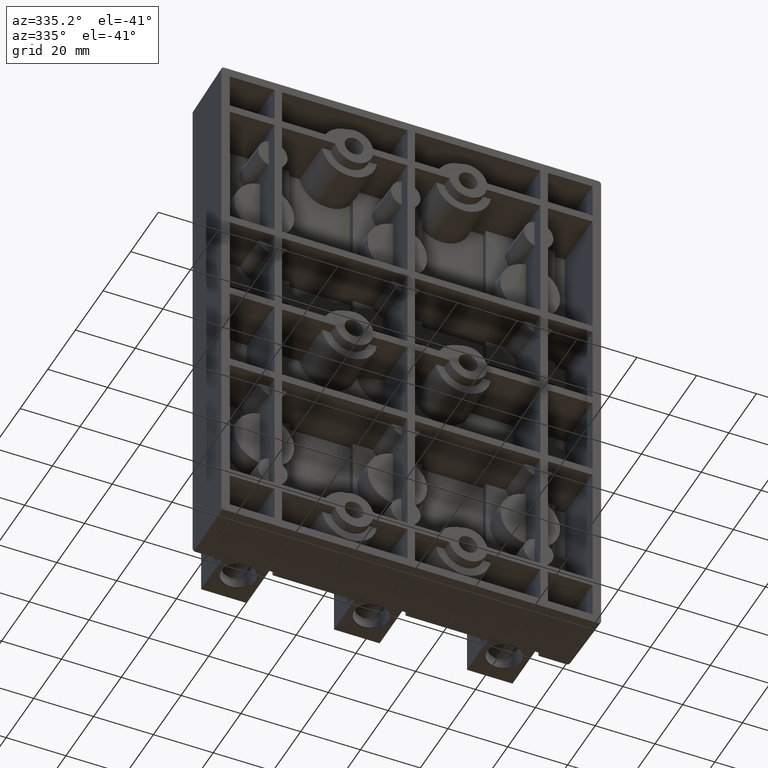
[diagram: clean part render]
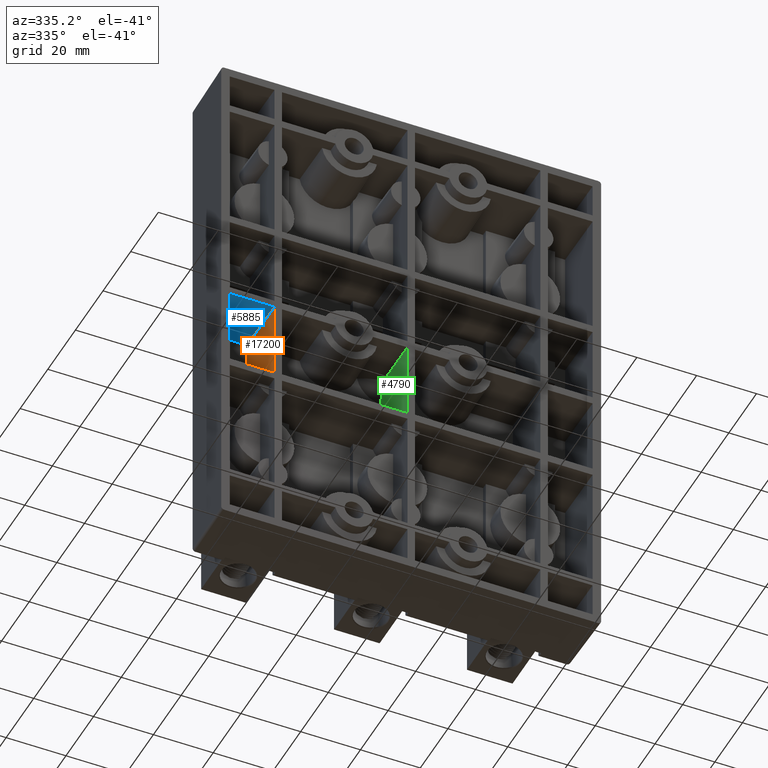
[diagram: same view with three faces highlighted in distinct colors, each labeled with its STEP entity id]
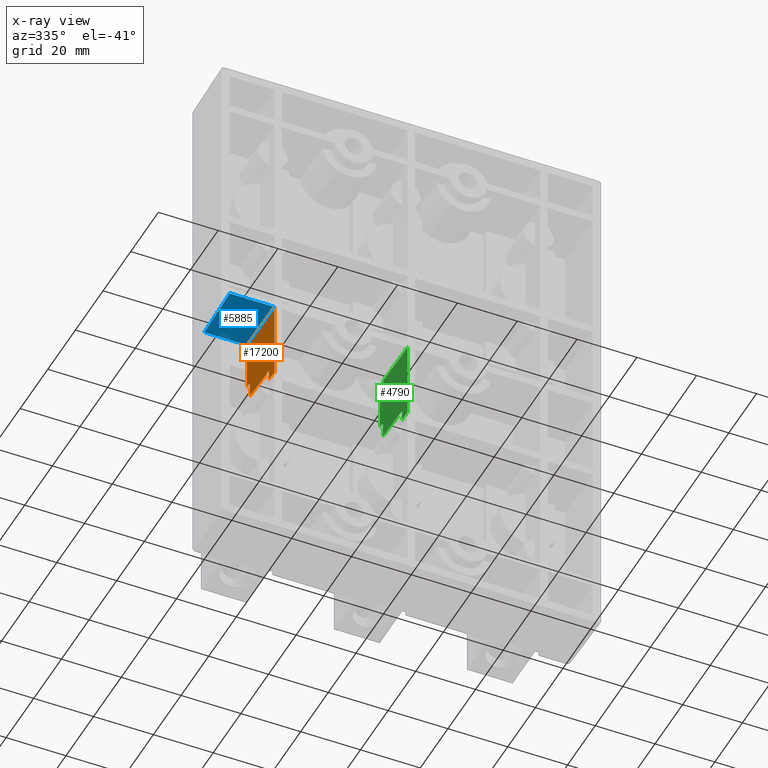
[diagram: x-ray of the same camera — body ghosted, the three highlighted faces saturated]
A machine part, auxiliary view with three faces highlighted in distinct colors.
The next image is the same camera in x-ray (body ghosted, the three faces saturated) — at least one of them is partly hidden behind the body in this view.
Their STEP definitions:

[orange] entity #17200 — the highlighted planar face has unit normal (-0.9998, -0.0175, 0).
#1521 = CARTESIAN_POINT ( 'NONE',  ( -1.799321425979187000, 4.217833704478631000E-017, -0.04932142597919560900 ) ) ;
#2028 = LINE ( 'NONE', #5041, #28330 ) ;
#4012 = DIRECTION ( 'NONE',  ( -5.434857531684421300E-016, -9.486579109116360000E-018, -1.000000000000000000 ) ) ;
#4737 = LINE ( 'NONE', #28675, #12749 ) ;
#5041 = CARTESIAN_POINT ( 'NONE',  ( -1.799321425979187600, 7.821329258079843800E-051, -1.080678574020799800 ) ) ;
#5464 = VECTOR ( 'NONE', #4012, 39.37007874015748100 ) ;
#5694 = DIRECTION ( 'NONE',  ( -0.9998476951563912700, -0.01745240643728345300, 5.435685412901140100E-016 ) ) ;
#8646 = CARTESIAN_POINT ( 'NONE',  ( -1.812499999999991600, 0.7550000000000000000, -0.7249999999999940900 ) ) ;
#8880 = DIRECTION ( 'NONE',  ( 5.434857531684421300E-016, 9.486579109116360000E-018, 1.000000000000000000 ) ) ;
#9981 = AXIS2_PLACEMENT_3D ( 'NONE', #22775, #5694, #29703 ) ;
#10492 = LINE ( 'NONE', #29225, #37928 ) ;
#10588 = CARTESIAN_POINT ( 'NONE',  ( -1.811103594805744100, 0.6750000000005457200, -0.9363058572779544600 ) ) ;
#10701 = CARTESIAN_POINT ( 'NONE',  ( -1.812499999999991600, 0.7550000000000000000, -0.7249999999999940900 ) ) ;
#10909 = ORIENTED_EDGE ( 'NONE', *, *, #25054, .T. ) ;
#11194 = CARTESIAN_POINT ( 'NONE',  ( -1.811103594805732100, 0.6750000000000000400, 3.499999999999986200 ) ) ;
#11324 = CARTESIAN_POINT ( 'NONE',  ( -1.802026961043064600, 0.1550000000001802400, -0.9430784738553837900 ) ) ;
#12107 = DIRECTION ( 'NONE',  ( 0.01744974916068238100, -0.9996954598818874600, 0.01744974916068262000 ) ) ;
#12749 = VECTOR ( 'NONE', #32167, 39.37007874015748100 ) ;
#12910 = VECTOR ( 'NONE', #29198, 39.37007874015748100 ) ;
#14082 = EDGE_CURVE ( 'NONE', #24035, #35669, #10492, .T. ) ;
#14177 = CARTESIAN_POINT ( 'NONE',  ( -1.806458853191105900, 0.4089029311131446300, -0.9397334122915259600 ) ) ;
#14492 = EDGE_CURVE ( 'NONE', #25416, #38832, #28484, .T. ) ;
#15102 = VERTEX_POINT ( 'NONE', #10701 ) ;
#15535 = B_SPLINE_CURVE_WITH_KNOTS ( 'NONE', 3,
 ( #10588, #27825, #14177, #38257, #17630, #41674, #21086 ),
 .UNSPECIFIED., .F., .F.,
 ( 4, 3, 4 ),
 ( 8.314767584964345500E-015, 0.01014068344202671100, 0.01321113199718661500 ),
 .UNSPECIFIED. ) ;
#16324 = ORIENTED_EDGE ( 'NONE', *, *, #14492, .T. ) ;
#17200 = ADVANCED_FACE ( 'NONE', ( #39142 ), #26220, .T. ) ;
#17278 = CARTESIAN_POINT ( 'NONE',  ( -1.812499999999990900, 0.7550000000000000000, -0.06249999999999977800 ) ) ;
#17630 = CARTESIAN_POINT ( 'NONE',  ( -1.803433313484292800, 0.2355698773974739800, -0.9420123898356945700 ) ) ;
#17699 = CARTESIAN_POINT ( 'NONE',  ( -1.811103594805744100, 0.6750000000005457200, -0.9363058572779544600 ) ) ;
#18590 = EDGE_LOOP ( 'NONE', ( #28900, #21356, #26455, #41664, #40898, #10909, #33064, #16324 ) ) ;
#20233 = LINE ( 'NONE', #22357, #30468 ) ;
#21086 = CARTESIAN_POINT ( 'NONE',  ( -1.802026961043064600, 0.1550000000001802400, -0.9430784738553837900 ) ) ;
#21356 = ORIENTED_EDGE ( 'NONE', *, *, #22698, .T. ) ;
#22056 = LINE ( 'NONE', #8646, #12910 ) ;
#22261 = DIRECTION ( 'NONE',  ( -0.01744974916068265500, 0.9996954598818874600, 0.01744974916068265500 ) ) ;
#22357 = CARTESIAN_POINT ( 'NONE',  ( -1.799321425979185200, 2.731847993664263200E-016, 3.499999999999986200 ) ) ;
#22409 = VERTEX_POINT ( 'NONE', #42086 ) ;
#22698 = EDGE_CURVE ( 'NONE', #26345, #22409, #32879, .T. ) ;
#22775 = CARTESIAN_POINT ( 'NONE',  ( -1.812499999999989600, 0.7550000000000000000, 3.499999999999986200 ) ) ;
#24035 = VERTEX_POINT ( 'NONE', #17278 ) ;
#24517 = CARTESIAN_POINT ( 'NONE',  ( -1.802026961043058800, 0.1550000000000001100, 3.499999999999986200 ) ) ;
#25054 = EDGE_CURVE ( 'NONE', #24035, #15102, #4737, .T. ) ;
#25416 = VERTEX_POINT ( 'NONE', #40407 ) ;
#26220 = PLANE ( 'NONE',  #9981 ) ;
#26345 = VERTEX_POINT ( 'NONE', #11324 ) ;
#26455 = ORIENTED_EDGE ( 'NONE', *, *, #32523, .F. ) ;
#27411 = VECTOR ( 'NONE', #31786, 39.37007874015748100 ) ;
#27825 = CARTESIAN_POINT ( 'NONE',  ( -1.808781221514226900, 0.5419513232372340500, -0.9380084229970838700 ) ) ;
#27886 = EDGE_CURVE ( 'NONE', #40378, #35669, #20233, .T. ) ;
#28330 = VECTOR ( 'NONE', #22261, 39.37007874015748900 ) ;
#28484 = LINE ( 'NONE', #11194, #27411 ) ;
#28675 = CARTESIAN_POINT ( 'NONE',  ( -1.812499999999989600, 0.7550000000000000000, 3.499999999999986200 ) ) ;
#28900 = ORIENTED_EDGE ( 'NONE', *, *, #42540, .T. ) ;
#29198 = DIRECTION ( 'NONE',  ( 0.01745240643728345300, -0.9998476951563912700, 0.0000000000000000000 ) ) ;
#29225 = CARTESIAN_POINT ( 'NONE',  ( -1.812499999999991100, 0.7550000000000000000, -0.06249999999999982700 ) ) ;
#29703 = DIRECTION ( 'NONE',  ( 0.01745240643728345300, -0.9998476951563912700, 0.0000000000000000000 ) ) ;
#30468 = VECTOR ( 'NONE', #8880, 39.37007874015748100 ) ;
#30751 = EDGE_CURVE ( 'NONE', #15102, #25416, #22056, .T. ) ;
#31786 = DIRECTION ( 'NONE',  ( -5.434857531684421300E-016, -9.486579109116360000E-018, -1.000000000000000000 ) ) ;
#32167 = DIRECTION ( 'NONE',  ( -5.434857531684421300E-016, -9.486579109116360000E-018, -1.000000000000000000 ) ) ;
#32523 = EDGE_CURVE ( 'NONE', #40378, #22409, #2028, .T. ) ;
#32879 = LINE ( 'NONE', #24517, #5464 ) ;
#33064 = ORIENTED_EDGE ( 'NONE', *, *, #30751, .T. ) ;
#33585 = CARTESIAN_POINT ( 'NONE',  ( -1.799321425979187600, 1.273395197089867700E-016, -1.080678574020799100 ) ) ;
#35669 = VERTEX_POINT ( 'NONE', #1521 ) ;
#37928 = VECTOR ( 'NONE', #12107, 39.37007874015748900 ) ;
#38257 = CARTESIAN_POINT ( 'NONE',  ( -1.804136490481178300, 0.2758548605686793100, -0.9414827241427046200 ) ) ;
#38832 = VERTEX_POINT ( 'NONE', #17699 ) ;
#39142 = FACE_OUTER_BOUND ( 'NONE', #18590, .T. ) ;
#40378 = VERTEX_POINT ( 'NONE', #33585 ) ;
#40407 = CARTESIAN_POINT ( 'NONE',  ( -1.811103594805734100, 0.6750000000000000400, -0.7249999999999940900 ) ) ;
#40898 = ORIENTED_EDGE ( 'NONE', *, *, #14082, .F. ) ;
#41664 = ORIENTED_EDGE ( 'NONE', *, *, #27886, .T. ) ;
#41674 = CARTESIAN_POINT ( 'NONE',  ( -1.802730136998280900, 0.1952849234941960700, -0.9425442871958800200 ) ) ;
#42086 = CARTESIAN_POINT ( 'NONE',  ( -1.802026961043061300, 0.1550000000000000800, -1.077973038956926000 ) ) ;
#42540 = EDGE_CURVE ( 'NONE', #38832, #26345, #15535, .T. ) ;

[blue] entity #5885 — the highlighted planar face has unit normal (0, -0.0175, -0.9998).
#205 = FACE_OUTER_BOUND ( 'NONE', #35281, .T. ) ;
#1049 = ORIENTED_EDGE ( 'NONE', *, *, #42583, .T. ) ;
#1521 = CARTESIAN_POINT ( 'NONE',  ( -1.799321425979187000, 4.217833704478631000E-017, -0.04932142597919560900 ) ) ;
#2878 = VERTEX_POINT ( 'NONE', #7430 ) ;
#5076 = DIRECTION ( 'NONE',  ( 4.717927861788497900E-016, -0.01745240643728345300, -0.9998476951563912700 ) ) ;
#5885 = ADVANCED_FACE ( 'NONE', ( #205 ), #25625, .T. ) ;
#7430 = CARTESIAN_POINT ( 'NONE',  ( -2.374999999999992500, 0.7550000000000000000, -0.06249999999999999300 ) ) ;
#9115 = VECTOR ( 'NONE', #33541, 39.37007874015748100 ) ;
#10245 = LINE ( 'NONE', #27363, #35522 ) ;
#10492 = LINE ( 'NONE', #29225, #37928 ) ;
#11100 = ORIENTED_EDGE ( 'NONE', *, *, #14082, .T. ) ;
#12107 = DIRECTION ( 'NONE',  ( 0.01744974916068238100, -0.9996954598818874600, 0.01744974916068262000 ) ) ;
#14082 = EDGE_CURVE ( 'NONE', #24035, #35669, #10492, .T. ) ;
#14307 = CARTESIAN_POINT ( 'NONE',  ( 2.499999999999986200, 0.0000000000000000000, -0.04932142597919356900 ) ) ;
#14522 = CARTESIAN_POINT ( 'NONE',  ( -2.388178574020796600, 2.408588275140259900E-017, -0.04932142597919568500 ) ) ;
#14693 = ORIENTED_EDGE ( 'NONE', *, *, #31083, .F. ) ;
#15286 = CARTESIAN_POINT ( 'NONE',  ( 2.499999999999986200, 0.7550000000000000000, -0.06249999999999779300 ) ) ;
#17278 = CARTESIAN_POINT ( 'NONE',  ( -1.812499999999990900, 0.7550000000000000000, -0.06249999999999977800 ) ) ;
#17862 = LINE ( 'NONE', #14307, #24814 ) ;
#19531 = ORIENTED_EDGE ( 'NONE', *, *, #31474, .T. ) ;
#21124 = VERTEX_POINT ( 'NONE', #14522 ) ;
#22976 = CARTESIAN_POINT ( 'NONE',  ( 2.499999999999986200, 0.7550000000000000000, -0.06249999999999779300 ) ) ;
#24035 = VERTEX_POINT ( 'NONE', #17278 ) ;
#24654 = DIRECTION ( 'NONE',  ( -1.000000000000000000, -8.233919458571651700E-018, -4.717209298523350300E-016 ) ) ;
#24814 = VECTOR ( 'NONE', #24654, 39.37007874015748100 ) ;
#25625 = PLANE ( 'NONE',  #42790 ) ;
#27346 = LINE ( 'NONE', #22976, #9115 ) ;
#27363 = CARTESIAN_POINT ( 'NONE',  ( -2.374999999999992500, 0.7550000000000000000, -0.06250000000000022200 ) ) ;
#29087 = DIRECTION ( 'NONE',  ( 0.0000000000000000000, 0.9998476951563912700, -0.01745240643728345300 ) ) ;
#29225 = CARTESIAN_POINT ( 'NONE',  ( -1.812499999999991100, 0.7550000000000000000, -0.06249999999999982700 ) ) ;
#30865 = DIRECTION ( 'NONE',  ( -0.01744974916068274500, -0.9996954598818874600, 0.01744974916068310600 ) ) ;
#31083 = EDGE_CURVE ( 'NONE', #2878, #21124, #10245, .T. ) ;
#31474 = EDGE_CURVE ( 'NONE', #2878, #24035, #27346, .T. ) ;
#33541 = DIRECTION ( 'NONE',  ( 1.000000000000000000, 8.233919458571651700E-018, 4.717209298523350300E-016 ) ) ;
#35281 = EDGE_LOOP ( 'NONE', ( #19531, #11100, #1049, #14693 ) ) ;
#35522 = VECTOR ( 'NONE', #30865, 39.37007874015748900 ) ;
#35669 = VERTEX_POINT ( 'NONE', #1521 ) ;
#37928 = VECTOR ( 'NONE', #12107, 39.37007874015748900 ) ;
#42583 = EDGE_CURVE ( 'NONE', #35669, #21124, #17862, .T. ) ;
#42790 = AXIS2_PLACEMENT_3D ( 'NONE', #15286, #5076, #29087 ) ;

[green] entity #4790 — the highlighted planar face has unit normal (-0.9998, -0.0175, 0).
#512 = ORIENTED_EDGE ( 'NONE', *, *, #16446, .T. ) ;
#1477 = CARTESIAN_POINT ( 'NONE',  ( -0.04932142597919519900, -1.683545924561659400E-017, -0.04932142597919562200 ) ) ;
#1600 = VECTOR ( 'NONE', #8549, 39.37007874015748100 ) ;
#1960 = VERTEX_POINT ( 'NONE', #18596 ) ;
#1992 = DIRECTION ( 'NONE',  ( -2.717428765842211200E-016, -4.743289554558180800E-018, -1.000000000000000000 ) ) ;
#2474 = FACE_OUTER_BOUND ( 'NONE', #38538, .T. ) ;
#3462 = LINE ( 'NONE', #3756, #20615 ) ;
#3464 = PLANE ( 'NONE',  #27768 ) ;
#3686 = EDGE_CURVE ( 'NONE', #11908, #14589, #43287, .T. ) ;
#3756 = CARTESIAN_POINT ( 'NONE',  ( -0.06249999999999846000, 0.7550000000000000000, 3.499999999999984500 ) ) ;
#4473 = CARTESIAN_POINT ( 'NONE',  ( -0.06249999999999960400, 0.7550000000000000000, -0.7249999999999945400 ) ) ;
#4790 = ADVANCED_FACE ( 'NONE', ( #2474 ), #3464, .T. ) ;
#6215 = EDGE_CURVE ( 'NONE', #21104, #35070, #3462, .T. ) ;
#6465 = ORIENTED_EDGE ( 'NONE', *, *, #3686, .T. ) ;
#6741 = CARTESIAN_POINT ( 'NONE',  ( -0.06249999999999960400, 0.7550000000000000000, -0.7249999999999944300 ) ) ;
#7311 = CARTESIAN_POINT ( 'NONE',  ( -0.05413649048118609300, 0.2758548605686772000, -0.9414827241427021800 ) ) ;
#7922 = ORIENTED_EDGE ( 'NONE', *, *, #39608, .T. ) ;
#8531 = CARTESIAN_POINT ( 'NONE',  ( -0.06110359480575178900, 0.6750000000005457200, -0.9363058572779520100 ) ) ;
#8549 = DIRECTION ( 'NONE',  ( -0.01744974916068262000, 0.9996954598818874600, -0.01744974916068312400 ) ) ;
#9220 = VECTOR ( 'NONE', #16296, 39.37007874015748100 ) ;
#10750 = CARTESIAN_POINT ( 'NONE',  ( -0.05273013699828860800, 0.1952849234941953500, -0.9425442871958775700 ) ) ;
#11328 = VERTEX_POINT ( 'NONE', #30715 ) ;
#11530 = LINE ( 'NONE', #4473, #29810 ) ;
#11811 = ORIENTED_EDGE ( 'NONE', *, *, #6215, .T. ) ;
#11908 = VERTEX_POINT ( 'NONE', #8531 ) ;
#12344 = CARTESIAN_POINT ( 'NONE',  ( -0.06110359480574106800, 0.6750000000000000400, 3.499999999999984500 ) ) ;
#14589 = VERTEX_POINT ( 'NONE', #35707 ) ;
#15226 = CARTESIAN_POINT ( 'NONE',  ( -0.06151625303178313900, 0.6986411739365032700, -0.2414275405462338300 ) ) ;
#16296 = DIRECTION ( 'NONE',  ( 2.717428765842211200E-016, 4.743289554558180800E-018, 1.000000000000000000 ) ) ;
#16421 = VERTEX_POINT ( 'NONE', #38687 ) ;
#16446 = EDGE_CURVE ( 'NONE', #37305, #16421, #29496, .T. ) ;
#16483 = CARTESIAN_POINT ( 'NONE',  ( -0.05202696104306794900, 0.1550000000000001100, 3.499999999999984500 ) ) ;
#17359 = CARTESIAN_POINT ( 'NONE',  ( -0.06110359480575178900, 0.6750000000005457200, -0.9363058572779520100 ) ) ;
#18345 = LINE ( 'NONE', #40336, #9220 ) ;
#18596 = CARTESIAN_POINT ( 'NONE',  ( -0.04932142597919527600, -1.046918547002628700E-016, -0.04932142597919571300 ) ) ;
#18666 = CARTESIAN_POINT ( 'NONE',  ( -0.06205436686996245600, 0.7294696950787830100, -0.3151151692894297900 ) ) ;
#19302 = EDGE_CURVE ( 'NONE', #35070, #28039, #11530, .T. ) ;
#20615 = VECTOR ( 'NONE', #31225, 39.37007874015748100 ) ;
#20687 = DIRECTION ( 'NONE',  ( 0.01745240643728345300, -0.9998476951563912700, 0.0000000000000000000 ) ) ;
#20941 = CARTESIAN_POINT ( 'NONE',  ( -0.05878122151423474000, 0.5419513232372333800, -0.9380084229970814300 ) ) ;
#21104 = VERTEX_POINT ( 'NONE', #41880 ) ;
#21446 = VECTOR ( 'NONE', #42253, 39.37007874015748900 ) ;
#21942 = ORIENTED_EDGE ( 'NONE', *, *, #23533, .T. ) ;
#22120 = CARTESIAN_POINT ( 'NONE',  ( -0.06249999999999974300, 0.7549999999999995600, -0.3620687089490048400 ) ) ;
#22957 = ORIENTED_EDGE ( 'NONE', *, *, #40345, .T. ) ;
#22992 = EDGE_CURVE ( 'NONE', #28039, #11908, #24203, .T. ) ;
#23153 = LINE ( 'NONE', #16483, #29074 ) ;
#23533 = EDGE_CURVE ( 'NONE', #1960, #11328, #28987, .T. ) ;
#24203 = LINE ( 'NONE', #12344, #40370 ) ;
#24947 = CARTESIAN_POINT ( 'NONE',  ( -0.05202696104306919100, 0.1550000000000000800, -1.077973038956926000 ) ) ;
#25394 = B_SPLINE_CURVE_WITH_KNOTS ( 'NONE', 3,
 ( #32360, #25414, #35840, #15226, #39274, #18666, #42713, #22120 ),
 .UNSPECIFIED., .F., .F.,
 ( 4, 2, 2, 4 ),
 ( 1.734723475976807100E-018, 0.004016314174575893700, 0.006024471261863839600, 0.008032628349151785600 ),
 .UNSPECIFIED. ) ;
#25414 = CARTESIAN_POINT ( 'NONE',  ( -0.06092265255567146100, 0.6646338254360603100, -0.1141197788779633000 ) ) ;
#27768 = AXIS2_PLACEMENT_3D ( 'NONE', #30932, #41280, #20687 ) ;
#28039 = VERTEX_POINT ( 'NONE', #43849 ) ;
#28436 = DIRECTION ( 'NONE',  ( 0.01745240643728345300, -0.9998476951563912700, 0.0000000000000000000 ) ) ;
#28987 = LINE ( 'NONE', #1477, #1600 ) ;
#29074 = VECTOR ( 'NONE', #40537, 39.37007874015748100 ) ;
#29496 = LINE ( 'NONE', #24947, #21446 ) ;
#29810 = VECTOR ( 'NONE', #28436, 39.37007874015748100 ) ;
#30284 = EDGE_CURVE ( 'NONE', #14589, #37305, #23153, .T. ) ;
#30715 = CARTESIAN_POINT ( 'NONE',  ( -0.06084393841314496300, 0.6601242952309376300, -0.06084393841314571200 ) ) ;
#30932 = CARTESIAN_POINT ( 'NONE',  ( -0.06249999999999846000, 0.7550000000000000000, 3.499999999999984500 ) ) ;
#31225 = DIRECTION ( 'NONE',  ( -2.717428765842211200E-016, -4.743289554558180800E-018, -1.000000000000000000 ) ) ;
#31354 = CARTESIAN_POINT ( 'NONE',  ( -0.05343331348430056800, 0.2355698773974725900, -0.9420123898356921300 ) ) ;
#32102 = ORIENTED_EDGE ( 'NONE', *, *, #22992, .T. ) ;
#32360 = CARTESIAN_POINT ( 'NONE',  ( -0.06084393841314496300, 0.6601242952309376300, -0.06084393841314571200 ) ) ;
#34805 = CARTESIAN_POINT ( 'NONE',  ( -0.05202696104306968300, 0.1550000000001802400, -0.9430784738553805700 ) ) ;
#35070 = VERTEX_POINT ( 'NONE', #6741 ) ;
#35417 = ORIENTED_EDGE ( 'NONE', *, *, #30284, .T. ) ;
#35707 = CARTESIAN_POINT ( 'NONE',  ( -0.05202696104306968300, 0.1550000000001802400, -0.9430784738553805700 ) ) ;
#35840 = CARTESIAN_POINT ( 'NONE',  ( -0.06110201157146003700, 0.6749092965687241200, -0.1659037986916296100 ) ) ;
#37305 = VERTEX_POINT ( 'NONE', #41607 ) ;
#37466 = ORIENTED_EDGE ( 'NONE', *, *, #19302, .T. ) ;
#38118 = CARTESIAN_POINT ( 'NONE',  ( -0.05645885319111381600, 0.4089029311131431900, -0.9397334122915235200 ) ) ;
#38538 = EDGE_LOOP ( 'NONE', ( #35417, #512, #22957, #21942, #7922, #11811, #37466, #32102, #6465 ) ) ;
#38687 = CARTESIAN_POINT ( 'NONE',  ( -0.04932142597919552500, -1.086374241647062700E-017, -1.080678574020800000 ) ) ;
#39274 = CARTESIAN_POINT ( 'NONE',  ( -0.06167875582071630900, 0.7079509524793826700, -0.2662401186746081700 ) ) ;
#39608 = EDGE_CURVE ( 'NONE', #11328, #21104, #25394, .T. ) ;
#40336 = CARTESIAN_POINT ( 'NONE',  ( -0.04932142597919423500, 0.0000000000000000000, 3.499999999999984500 ) ) ;
#40345 = EDGE_CURVE ( 'NONE', #16421, #1960, #18345, .T. ) ;
#40370 = VECTOR ( 'NONE', #1992, 39.37007874015748100 ) ;
#40537 = DIRECTION ( 'NONE',  ( -2.717428765842211200E-016, -4.743289554558180800E-018, -1.000000000000000000 ) ) ;
#41280 = DIRECTION ( 'NONE',  ( -0.9998476951563912700, -0.01745240643728345300, 2.717842706450570600E-016 ) ) ;
#41607 = CARTESIAN_POINT ( 'NONE',  ( -0.05202696104306924600, 0.1550000000000000800, -1.077973038956926000 ) ) ;
#41880 = CARTESIAN_POINT ( 'NONE',  ( -0.06249999999999974300, 0.7549999999999995600, -0.3620687089490048400 ) ) ;
#42253 = DIRECTION ( 'NONE',  ( 0.01744974916068259300, -0.9996954598818874600, -0.01744974916068617300 ) ) ;
#42713 = CARTESIAN_POINT ( 'NONE',  ( -0.06226579484576584600, 0.7415823957002212200, -0.3389477800802221400 ) ) ;
#43287 = B_SPLINE_CURVE_WITH_KNOTS ( 'NONE', 3,
 ( #17359, #20941, #38118, #7311, #31354, #10750, #34805 ),
 .UNSPECIFIED., .F., .F.,
 ( 4, 3, 4 ),
 ( 8.314756209981316700E-015, 0.01014068344202676300, 0.01321113199718661500 ),
 .UNSPECIFIED. ) ;
#43849 = CARTESIAN_POINT ( 'NONE',  ( -0.06110359480574222000, 0.6750000000000000400, -0.7249999999999944300 ) ) ;